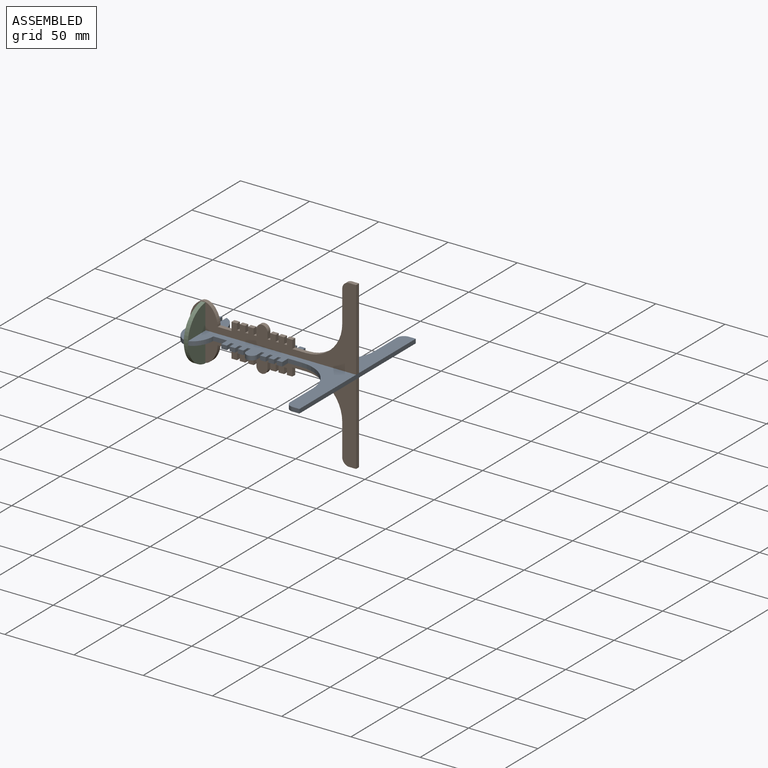
[diagram: assembled view]
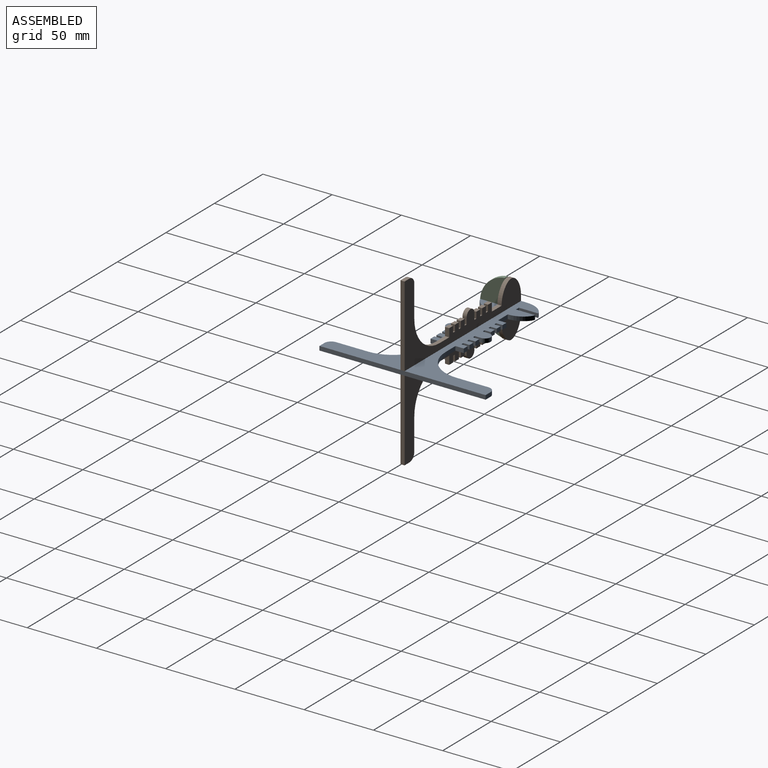
[diagram: assembled view, second angle]
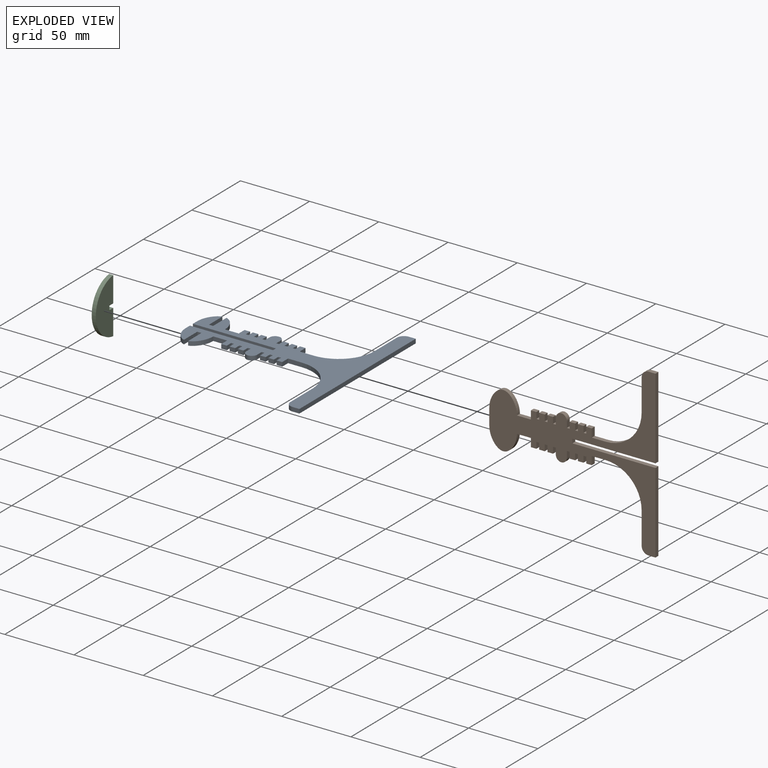
[diagram: exploded view]
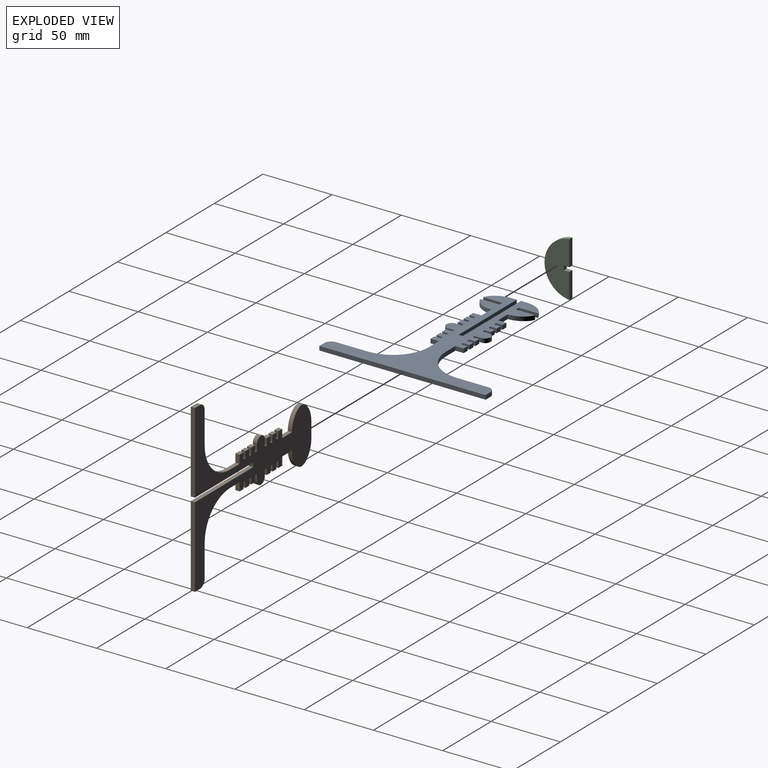
[diagram: exploded view, second angle]
ASSEMBLY  parts=3 mates=6
PART A: 84 faces, bbox 120x3x120 mm
  f0: plane 3x3mm, normal (1,0,0), area 9mm2, adj f1,f81,f82,f83
  f1: plane 13.8x3mm, normal (0,0,-1), area 41.4mm2, adj f0,f2,f82,f83
  f2: extruded ~13.8x8.5mm, area 51.7mm2, adj f1,f3,f82,f83
  f3: plane 4.5x3mm, normal (0,0,1), area 13.5mm2, adj f2,f4,f82,f83
  f4: plane 60x3mm, normal (-1,0,0), area 180mm2, adj f3,f5,f82,f83
  f5: plane 3x3mm, normal (0,0,1), area 9mm2, adj f4,f6,f82,f83
  f6: plane 60x3mm, normal (1,0,0), area 180mm2, adj f5,f7,f82,f83
  f7: plane 4.5x3mm, normal (0,0,1), area 13.5mm2, adj f6,f8,f82,f83
  f8: extruded ~13.8x8.5mm, area 51.7mm2, adj f7,f9,f82,f83
  f9: plane 13.8x3mm, normal (0,0,-1), area 41.4mm2, adj f8,f10,f82,f83
  f10: plane 3x3mm, normal (-1,0,0), area 9mm2, adj f9,f11,f82,f83
  f11: plane 13.8x3mm, normal (0,0,1), area 41.4mm2, adj f10,f12,f82,f83
  f12: extruded ~13.8x8.5mm, area 51.7mm2, adj f11,f13,f82,f83
  f13: plane 10x3mm, normal (-1,0,0), area 30mm2, adj f12,f14,f82,f83
  f14: plane 6x3mm, normal (0,0,1), area 18mm2, adj f13,f15,f82,f83
  f15: plane 4x3mm, normal (-1,0,0), area 12mm2, adj f14,f16,f82,f83
  f16: plane 4.5x3mm, normal (0,0,-1), area 13.5mm2, adj f15,f17,f82,f83
  f17: plane 3x2mm, normal (-1,0,0), area 6mm2, adj f16,f18,f82,f83
  f18: plane 4.5x3mm, normal (0,0,1), area 13.5mm2, adj f17,f19,f82,f83
  f19: plane 4x3mm, normal (-1,0,0), area 12mm2, adj f18,f20,f82,f83
  f20: plane 4.5x3mm, normal (0,0,-1), area 13.5mm2, adj f19,f21,f82,f83
  f21: plane 3x2mm, normal (-1,0,0), area 6mm2, adj f20,f22,f82,f83
  f22: plane 4.5x3mm, normal (0,0,1), area 13.5mm2, adj f21,f23,f82,f83
  f23: plane 4x3mm, normal (-1,0,0), area 12mm2, adj f22,f24,f82,f83
  f24: plane 4.5x3mm, normal (0,0,-1), area 13.5mm2, adj f23,f25,f82,f83
  f25: plane 3x2mm, normal (-1,0,0), area 6mm2, adj f24,f26,f82,f83
  f26: plane 4.5x3mm, normal (0,0,1), area 13.5mm2, adj f25,f27,f82,f83
  f27: cylinder r=4mm len=8mm, axis (0,1,0), area 37.7mm2, adj f26,f28,f82,f83
  f28: plane 4.5x3mm, normal (0,0,-1), area 13.5mm2, adj f27,f29,f82,f83
  f29: plane 3x2mm, normal (-1,0,0), area 6mm2, adj f28,f30,f82,f83
  f30: plane 4.5x3mm, normal (0,0,1), area 13.5mm2, adj f29,f31,f82,f83
  f31: plane 4x3mm, normal (-1,0,0), area 12mm2, adj f30,f32,f82,f83
  f32: plane 4.5x3mm, normal (0,0,-1), area 13.5mm2, adj f31,f33,f82,f83
  f33: plane 3x2mm, normal (-1,0,0), area 6mm2, adj f32,f34,f82,f83
  f34: plane 4.5x3mm, normal (0,0,1), area 13.5mm2, adj f33,f35,f82,f83
  f35: plane 4x3mm, normal (-1,0,0), area 12mm2, adj f34,f36,f82,f83
  f36: plane 4.5x3mm, normal (0,0,-1), area 13.5mm2, adj f35,f37,f82,f83
  f37: plane 3x2mm, normal (-1,0,0), area 6mm2, adj f36,f38,f82,f83
  f38: plane 4.5x3mm, normal (0,0,1), area 13.5mm2, adj f37,f39,f82,f83
  f39: plane 4x3mm, normal (-1,0,0), area 12mm2, adj f38,f40,f82,f83
  f40: plane 6x3mm, normal (0,0,-1), area 18mm2, adj f39,f41,f82,f83
  f41: plane 10x3mm, normal (-1,0,0), area 30mm2, adj f40,f42,f82,f83
  f42: cylinder r=26mm len=26mm, axis (0,1,0), area 122.5mm2, adj f41,f43,f82,f83
  f43: plane 23x3mm, normal (0,0,1), area 69mm2, adj f42,f44,f82,f83
  f44: cylinder r=5mm len=5mm, axis (0,1,0), area 23.6mm2, adj f43,f45,f82,f83
  f45: plane 5x3mm, normal (-1,0,0), area 15mm2, adj f44,f46,f82,f83
  f46: plane 120x3mm, normal (0,0,-1), area 360mm2, adj f45,f47,f82,f83
  f47: plane 5x3mm, normal (1,0,0), area 15mm2, adj f46,f48,f82,f83
  f48: cylinder r=5mm len=5mm, axis (0,1,0), area 23.6mm2, adj f47,f49,f82,f83
  f49: plane 23x3mm, normal (0,0,1), area 69mm2, adj f48,f50,f82,f83
  f50: cylinder r=26mm len=26mm, axis (0,1,0), area 122.5mm2, adj f49,f51,f82,f83
  f51: plane 10x3mm, normal (1,0,0), area 30mm2, adj f50,f52,f82,f83
  f52: plane 6x3mm, normal (0,0,-1), area 18mm2, adj f51,f53,f82,f83
  f53: plane 4x3mm, normal (1,0,0), area 12mm2, adj f52,f54,f82,f83
  f54: plane 4.5x3mm, normal (0,0,1), area 13.5mm2, adj f53,f55,f82,f83
  f55: plane 3x2mm, normal (1,0,0), area 6mm2, adj f54,f56,f82,f83
  f56: plane 4.5x3mm, normal (0,0,-1), area 13.5mm2, adj f55,f57,f82,f83
  f57: plane 4x3mm, normal (1,0,0), area 12mm2, adj f56,f58,f82,f83
  f58: plane 4.5x3mm, normal (0,0,1), area 13.5mm2, adj f57,f59,f82,f83
  f59: plane 3x2mm, normal (1,0,0), area 6mm2, adj f58,f60,f82,f83
  f60: plane 4.5x3mm, normal (0,0,-1), area 13.5mm2, adj f59,f61,f82,f83
  f61: plane 4x3mm, normal (1,0,0), area 12mm2, adj f60,f62,f82,f83
  f62: plane 4.5x3mm, normal (0,0,1), area 13.5mm2, adj f61,f63,f82,f83
  f63: plane 3x2mm, normal (1,0,0), area 6mm2, adj f62,f64,f82,f83
  f64: plane 4.5x3mm, normal (0,0,-1), area 13.5mm2, adj f63,f65,f82,f83
  f65: cylinder r=4mm len=8mm, axis (0,1,0), area 37.7mm2, adj f64,f66,f82,f83
  f66: plane 4.5x3mm, normal (0,0,1), area 13.5mm2, adj f65,f67,f82,f83
  f67: plane 3x2mm, normal (1,0,0), area 6mm2, adj f66,f68,f82,f83
  f68: plane 4.5x3mm, normal (0,0,-1), area 13.5mm2, adj f67,f69,f82,f83
  f69: plane 4x3mm, normal (1,0,0), area 12mm2, adj f68,f70,f82,f83
  f70: plane 4.5x3mm, normal (0,0,1), area 13.5mm2, adj f69,f71,f82,f83
  f71: plane 3x2mm, normal (1,0,0), area 6mm2, adj f70,f72,f82,f83
  f72: plane 4.5x3mm, normal (0,0,-1), area 13.5mm2, adj f71,f73,f82,f83
  f73: plane 4x3mm, normal (1,0,0), area 12mm2, adj f72,f74,f82,f83
  f74: plane 4.5x3mm, normal (0,0,1), area 13.5mm2, adj f73,f75,f82,f83
  f75: plane 3x2mm, normal (1,0,0), area 6mm2, adj f74,f76,f82,f83
  f76: plane 4.5x3mm, normal (0,0,-1), area 13.5mm2, adj f75,f77,f82,f83
  f77: plane 4x3mm, normal (1,0,0), area 12mm2, adj f76,f78,f82,f83
  f78: plane 6x3mm, normal (0,0,1), area 18mm2, adj f77,f79,f82,f83
  f79: plane 10x3mm, normal (1,0,0), area 30mm2, adj f78,f80,f82,f83
  f80: extruded ~13.8x8.5mm, area 51.7mm2, adj f79,f81,f82,f83
  f81: plane 13.8x3mm, normal (0,0,1), area 41.4mm2, adj f0,f80,f82,f83
  f82: plane 120x120mm, normal (0,-1,0), area 3434.3mm2, adj f0,f1,f2,f3,f4,f5,f6,f7
  f83: plane 120x120mm, normal (0,1,0), area 3434.3mm2, adj f0,f1,f2,f3,f4,f5,f6,f7
PART B: 76 faces, bbox 120x3x120 mm
  f0: extruded ~20x14mm, area 112.5mm2, adj f1,f73,f74,f75
  f1: plane 10x3mm, normal (-1,0,0), area 30mm2, adj f0,f2,f74,f75
  f2: plane 6x3mm, normal (0,0,1), area 18mm2, adj f1,f3,f74,f75
  f3: plane 4x3mm, normal (-1,0,0), area 12mm2, adj f2,f4,f74,f75
  f4: plane 4.5x3mm, normal (0,0,-1), area 13.5mm2, adj f3,f5,f74,f75
  f5: plane 3x2mm, normal (-1,0,0), area 6mm2, adj f4,f6,f74,f75
  f6: plane 4.5x3mm, normal (0,0,1), area 13.5mm2, adj f5,f7,f74,f75
  f7: plane 4x3mm, normal (-1,0,0), area 12mm2, adj f6,f8,f74,f75
  f8: plane 4.5x3mm, normal (0,0,-1), area 13.5mm2, adj f7,f9,f74,f75
  f9: plane 3x2mm, normal (-1,0,0), area 6mm2, adj f8,f10,f74,f75
  f10: plane 4.5x3mm, normal (0,0,1), area 13.5mm2, adj f9,f11,f74,f75
  f11: plane 4x3mm, normal (-1,0,0), area 12mm2, adj f10,f12,f74,f75
  f12: plane 4.5x3mm, normal (0,0,-1), area 13.5mm2, adj f11,f13,f74,f75
  f13: plane 3x2mm, normal (-1,0,0), area 6mm2, adj f12,f14,f74,f75
  f14: plane 4.5x3mm, normal (0,0,1), area 13.5mm2, adj f13,f15,f74,f75
  f15: cylinder r=4mm len=8mm, axis (0,1,0), area 37.7mm2, adj f14,f16,f74,f75
  f16: plane 4.5x3mm, normal (0,0,-1), area 13.5mm2, adj f15,f17,f74,f75
  f17: plane 3x2mm, normal (-1,0,0), area 6mm2, adj f16,f18,f74,f75
  f18: plane 4.5x3mm, normal (0,0,1), area 13.5mm2, adj f17,f19,f74,f75
  f19: plane 4x3mm, normal (-1,0,0), area 12mm2, adj f18,f20,f74,f75
  f20: plane 4.5x3mm, normal (0,0,-1), area 13.5mm2, adj f19,f21,f74,f75
  f21: plane 3x2mm, normal (-1,0,0), area 6mm2, adj f20,f22,f74,f75
  f22: plane 4.5x3mm, normal (0,0,1), area 13.5mm2, adj f21,f23,f74,f75
  f23: plane 4x3mm, normal (-1,0,0), area 12mm2, adj f22,f24,f74,f75
  f24: plane 4.5x3mm, normal (0,0,-1), area 13.5mm2, adj f23,f25,f74,f75
  f25: plane 3x2mm, normal (-1,0,0), area 6mm2, adj f24,f26,f74,f75
  f26: plane 4.5x3mm, normal (0,0,1), area 13.5mm2, adj f25,f27,f74,f75
  f27: plane 4x3mm, normal (-1,0,0), area 12mm2, adj f26,f28,f74,f75
  f28: plane 6x3mm, normal (0,0,-1), area 18mm2, adj f27,f29,f74,f75
  f29: plane 10x3mm, normal (-1,0,0), area 30mm2, adj f28,f30,f74,f75
  f30: cylinder r=26mm len=26mm, axis (0,1,0), area 122.5mm2, adj f29,f31,f74,f75
  f31: plane 23x3mm, normal (0,0,1), area 69mm2, adj f30,f32,f74,f75
  f32: cylinder r=5mm len=5mm, axis (0,1,0), area 23.6mm2, adj f31,f33,f74,f75
  f33: plane 5x3mm, normal (-1,0,0), area 15mm2, adj f32,f34,f74,f75
  f34: plane 58.5x3mm, normal (0,0,-1), area 175.5mm2, adj f33,f35,f74,f75
  f35: plane 60x3mm, normal (1,0,0), area 180mm2, adj f34,f36,f74,f75
  f36: plane 3x3mm, normal (0,0,-1), area 9mm2, adj f35,f37,f74,f75
  f37: plane 60x3mm, normal (-1,0,0), area 180mm2, adj f36,f38,f74,f75
  f38: plane 58.5x3mm, normal (0,0,-1), area 175.5mm2, adj f37,f39,f74,f75
  f39: plane 5x3mm, normal (1,0,0), area 15mm2, adj f38,f40,f74,f75
  f40: cylinder r=5mm len=5mm, axis (0,1,0), area 23.6mm2, adj f39,f41,f74,f75
  f41: plane 23x3mm, normal (0,0,1), area 69mm2, adj f40,f42,f74,f75
  f42: cylinder r=26mm len=26mm, axis (0,1,0), area 122.5mm2, adj f41,f43,f74,f75
  f43: plane 10x3mm, normal (1,0,0), area 30mm2, adj f42,f44,f74,f75
  f44: plane 6x3mm, normal (0,0,-1), area 18mm2, adj f43,f45,f74,f75
  f45: plane 4x3mm, normal (1,0,0), area 12mm2, adj f44,f46,f74,f75
  f46: plane 4.5x3mm, normal (0,0,1), area 13.5mm2, adj f45,f47,f74,f75
  f47: plane 3x2mm, normal (1,0,0), area 6mm2, adj f46,f48,f74,f75
  f48: plane 4.5x3mm, normal (0,0,-1), area 13.5mm2, adj f47,f49,f74,f75
  f49: plane 4x3mm, normal (1,0,0), area 12mm2, adj f48,f50,f74,f75
  f50: plane 4.5x3mm, normal (0,0,1), area 13.5mm2, adj f49,f51,f74,f75
  f51: plane 3x2mm, normal (1,0,0), area 6mm2, adj f50,f52,f74,f75
  f52: plane 4.5x3mm, normal (0,0,-1), area 13.5mm2, adj f51,f53,f74,f75
  f53: plane 4x3mm, normal (1,0,0), area 12mm2, adj f52,f54,f74,f75
  f54: plane 4.5x3mm, normal (0,0,1), area 13.5mm2, adj f53,f55,f74,f75
  f55: plane 3x2mm, normal (1,0,0), area 6mm2, adj f54,f56,f74,f75
  f56: plane 4.5x3mm, normal (0,0,-1), area 13.5mm2, adj f55,f57,f74,f75
  f57: cylinder r=4mm len=8mm, axis (0,1,0), area 37.7mm2, adj f56,f58,f74,f75
  f58: plane 4.5x3mm, normal (0,0,1), area 13.5mm2, adj f57,f59,f74,f75
  f59: plane 3x2mm, normal (1,0,0), area 6mm2, adj f58,f60,f74,f75
  f60: plane 4.5x3mm, normal (0,0,-1), area 13.5mm2, adj f59,f61,f74,f75
  f61: plane 4x3mm, normal (1,0,0), area 12mm2, adj f60,f62,f74,f75
  f62: plane 4.5x3mm, normal (0,0,1), area 13.5mm2, adj f61,f63,f74,f75
  f63: plane 3x2mm, normal (1,0,0), area 6mm2, adj f62,f64,f74,f75
  f64: plane 4.5x3mm, normal (0,0,-1), area 13.5mm2, adj f63,f65,f74,f75
  f65: plane 4x3mm, normal (1,0,0), area 12mm2, adj f64,f66,f74,f75
  f66: plane 4.5x3mm, normal (0,0,1), area 13.5mm2, adj f65,f67,f74,f75
  f67: plane 3x2mm, normal (1,0,0), area 6mm2, adj f66,f68,f74,f75
  f68: plane 4.5x3mm, normal (0,0,-1), area 13.5mm2, adj f67,f69,f74,f75
  f69: plane 4x3mm, normal (1,0,0), area 12mm2, adj f68,f70,f74,f75
  f70: plane 6x3mm, normal (0,0,1), area 18mm2, adj f69,f71,f74,f75
  f71: plane 10x3mm, normal (1,0,0), area 30mm2, adj f70,f72,f74,f75
  f72: extruded ~20x14mm, area 112.5mm2, adj f71,f73,f74,f75
  f73: plane 12x3mm, normal (0,0,1), area 36mm2, adj f0,f72,f74,f75
  f74: plane 120x120mm, normal (0,-1,0), area 3517.9mm2, adj f0,f1,f2,f3,f4,f5,f6,f7
  f75: plane 120x120mm, normal (0,1,0), area 3517.9mm2, adj f0,f1,f2,f3,f4,f5,f6,f7
PART C: 8 faces, bbox 39.8x18x3 mm
  f0: plane 4x3mm, normal (-1,0,0), area 12mm2, adj f1,f5,f6,f7
  f1: plane 3x3mm, normal (0,1,0), area 9mm2, adj f0,f2,f6,f7
  f2: plane 4x3mm, normal (1,0,0), area 12mm2, adj f1,f3,f6,f7
  f3: plane 18.4x3mm, normal (0,1,0), area 55.2mm2, adj f2,f4,f6,f7
  f4: cylinder r=20mm len=39.8mm, axis (0,0,-1), area 176.5mm2, adj f3,f5,f6,f7
  f5: plane 18.4x3mm, normal (0,1,0), area 55.2mm2, adj f0,f4,f6,f7
  f6: plane 39.8x18mm, normal (0,0,1), area 536.5mm2, adj f0,f1,f2,f3,f4,f5
  f7: plane 39.8x18mm, normal (0,0,-1), area 536.5mm2, adj f0,f1,f2,f3,f4,f5
PLACE A rot(axis=(0.58,-0.58,-0.58),120deg) t=(191.31,54.87,62.42)mm
PLACE B rot(axis=(0,-1,0),90deg) t=(191.31,56.37,60.92)mm
PLACE C rot(axis=(0,-1,0),90deg) t=(82.81,54.87,60.92)mm
MATE planar C.f7 <-> A.f81  axis (1,0,0) through (82.81,45.17,60.92)mm
MATE planar B.f36 <-> A.f5  axis (1,0,0) through (131.31,54.87,60.92)mm
MATE planar A.f6 <-> B.f75  axis (0,-1,0) through (101.31,56.37,60.92)mm
MATE planar B.f35 <-> A.f82  axis (0,0,1) through (161.31,54.87,59.42)mm
MATE planar A.f0 <-> C.f1  axis (0,-1,0) through (81.31,48.87,60.92)mm
MATE planar C.f2 <-> A.f82  axis (0,0,1) through (81.31,50.87,59.42)mm
